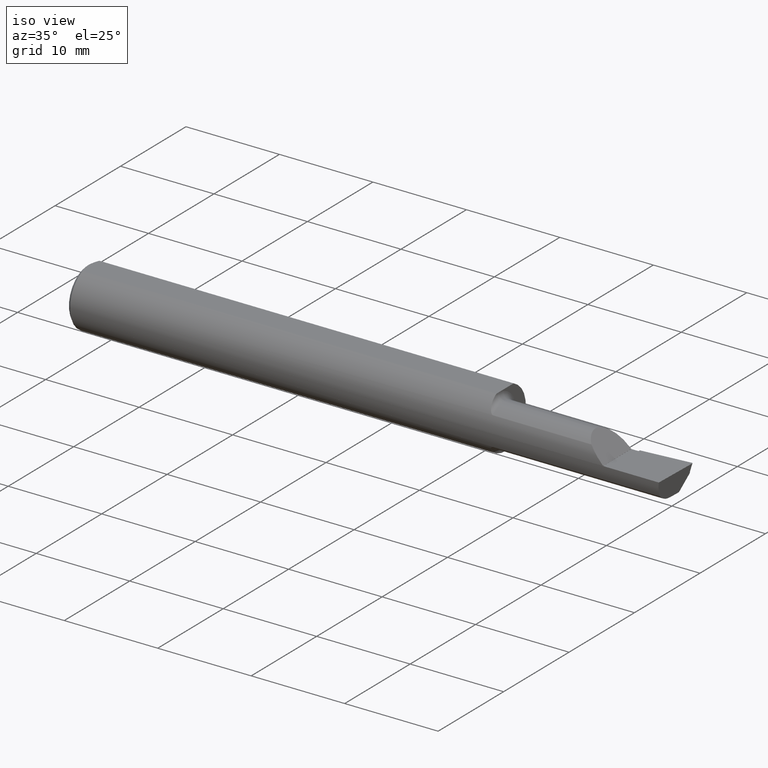
[diagram: clean part render]
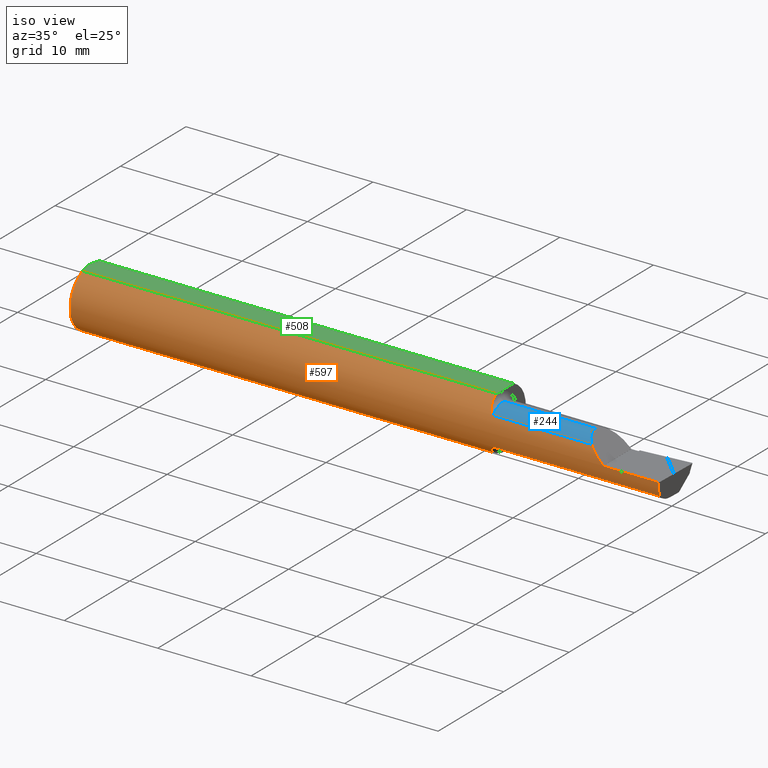
[diagram: same view with three faces highlighted in distinct colors, each labeled with its STEP entity id]
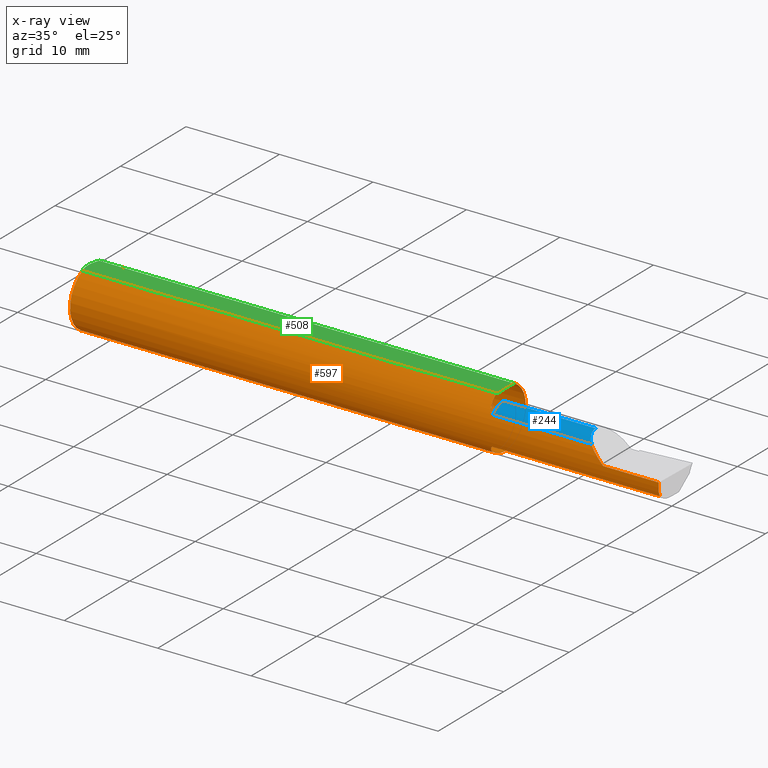
[diagram: x-ray of the same camera — body ghosted, the three highlighted faces saturated]
A machine part, iso view with three faces highlighted in distinct colors.
The next image is the same camera in x-ray (body ghosted, the three faces saturated) — at least one of them is partly hidden behind the body in this view.
Their STEP definitions:

[orange] entity #597 — the highlighted cylindrical surface (edge-blend (fillet) strip) has radius 3.1712 mm, axis along (-1, -0, -0).
#5 = EDGE_CURVE ( 'NONE', #467, #178, #11, .T. ) ;
#9 = CARTESIAN_POINT ( 'NONE',  ( 0.01499999999999915637, 0.000000000000000000, -0.1248500000000000026 ) ) ;
#11 = LINE ( 'NONE', #828, #252 ) ;
#16 = CARTESIAN_POINT ( 'NONE',  ( 1.784999999999999920, -0.1093425883694413014, 0.06026376082415467461 ) ) ;
#25 = ORIENTED_EDGE ( 'NONE', *, *, #273, .T. ) ;
#32 = CARTESIAN_POINT ( 'NONE',  ( 2.200086239175846003, -0.1093425883694415096, 0.06026376082415429991 ) ) ;
#46 = CARTESIAN_POINT ( 'NONE',  ( 1.761938239095210079, -0.07637198179816161170, -0.09902894417965883711 ) ) ;
#48 = CARTESIAN_POINT ( 'NONE',  ( 2.260000000000000231, -0.1248499999999999888, -3.414809992080329023E-17 ) ) ;
#51 = CARTESIAN_POINT ( 'NONE',  ( 2.024999999999999911, -0.1093425883694413014, 0.06026376082415467461 ) ) ;
#66 = CIRCLE ( 'NONE', #732, 0.1248500000000000026 ) ;
#81 = CARTESIAN_POINT ( 'NONE',  ( 2.238932527582365051, -0.1247904493837345280, 0.02141747241763532206 ) ) ;
#95 = LINE ( 'NONE', #1103, #230 ) ;
#97 = ORIENTED_EDGE ( 'NONE', *, *, #326, .T. ) ;
#108 = CARTESIAN_POINT ( 'NONE',  ( 2.500000000000000000, 0.000000000000000000, 0.000000000000000000 ) ) ;
#113 = CARTESIAN_POINT ( 'NONE',  ( 1.768415758364236590, -0.09681973434311108573, 0.07911054902715601578 ) ) ;
#119 = AXIS2_PLACEMENT_3D ( 'NONE', #889, #279, #682 ) ;
#122 = ORIENTED_EDGE ( 'NONE', *, *, #163, .T. ) ;
#125 = CARTESIAN_POINT ( 'NONE',  ( 2.500000000000000000, 0.05124158467494929065, 0.1138500000000000068 ) ) ;
#132 = CARTESIAN_POINT ( 'NONE',  ( 1.760000000000000009, 0.000000000000000000, 0.000000000000000000 ) ) ;
#134 = VERTEX_POINT ( 'NONE', #555 ) ;
#139 = CARTESIAN_POINT ( 'NONE',  ( 2.492174692773018396, -0.1248499999999999610, -0.02118798732072205496 ) ) ;
#145 = CARTESIAN_POINT ( 'NONE',  ( 2.489794518800235057, -0.1195698034294429557, -0.04170749830123408192 ) ) ;
#161 = VECTOR ( 'NONE', #1069, 39.37007874015748143 ) ;
#163 = EDGE_CURVE ( 'NONE', #178, #1138, #66, .T. ) ;
#165 = ORIENTED_EDGE ( 'NONE', *, *, #419, .T. ) ;
#172 =( BOUNDED_CURVE ( )  B_SPLINE_CURVE ( 3, ( #1200, #81, #592, #1311 ),
 .UNSPECIFIED., .F., .T. ) 
 B_SPLINE_CURVE_WITH_KNOTS ( ( 4, 4 ),
 ( 4.715192348093415475, 5.216111826723991207 ),
 .UNSPECIFIED. ) 
 CURVE ( )  GEOMETRIC_REPRESENTATION_ITEM ( )  RATIONAL_B_SPLINE_CURVE ( ( 1.000000000000000000, 0.9791990519953640559, 0.9791990519953640559, 1.000000000000000000 ) ) 
 REPRESENTATION_ITEM ( '' )  );
#174 = CARTESIAN_POINT ( 'NONE',  ( 1.766361277442388689, -0.09219001326833792254, -0.08449244930902043149 ) ) ;
#178 = VERTEX_POINT ( 'NONE', #352 ) ;
#186 = VERTEX_POINT ( 'NONE', #48 ) ;
#189 = CIRCLE ( 'NONE', #1062, 0.1248500000000000026 ) ;
#191 = CARTESIAN_POINT ( 'NONE',  ( 1.760000000000000009, -0.05124158467494927677, 0.1138500000000000068 ) ) ;
#193 = VERTEX_POINT ( 'NONE', #657 ) ;
#202 = DIRECTION ( 'NONE',  ( 0.000000000000000000, 0.000000000000000000, -1.000000000000000000 ) ) ;
#210 = CARTESIAN_POINT ( 'NONE',  ( 1.774262696791653271, -0.1045943557623048303, 0.06824036999240266910 ) ) ;
#216 = CARTESIAN_POINT ( 'NONE',  ( 1.766359086621634544, -0.09217855052086348921, 0.08450162317811930890 ) ) ;
#230 = VECTOR ( 'NONE', #777, 39.37007874015748143 ) ;
#236 = CARTESIAN_POINT ( 'NONE',  ( 2.487785916505024453, -0.1093425883694412876, -0.06026376082415470931 ) ) ;
#245 = ORIENTED_EDGE ( 'NONE', *, *, #5, .T. ) ;
#250 = DIRECTION ( 'NONE',  ( 0.000000000000000000, 0.000000000000000000, -1.000000000000000000 ) ) ;
#252 = VECTOR ( 'NONE', #302, 39.37007874015748143 ) ;
#267 = CARTESIAN_POINT ( 'NONE',  ( 1.760000000000000009, -0.05147485746864310929, -0.1137447209701746148 ) ) ;
#273 = EDGE_CURVE ( 'NONE', #636, #894, #584, .T. ) ;
#279 = DIRECTION ( 'NONE',  ( 1.000000000000000000, 0.000000000000000000, 0.000000000000000000 ) ) ;
#302 = DIRECTION ( 'NONE',  ( -1.000000000000000000, -0.000000000000000000, -0.000000000000000000 ) ) ;
#322 = VERTEX_POINT ( 'NONE', #1010 ) ;
#326 = EDGE_CURVE ( 'NONE', #894, #186, #95, .T. ) ;
#349 = CIRCLE ( 'NONE', #642, 0.1248500000000000026 ) ;
#352 = CARTESIAN_POINT ( 'NONE',  ( 0.01499999999999915637, -0.05124158467494929758, 0.1138500000000000068 ) ) ;
#374 = CARTESIAN_POINT ( 'NONE',  ( 1.781405924813791009, -0.1089009754209322584, -0.06106964548229007472 ) ) ;
#377 = ORIENTED_EDGE ( 'NONE', *, *, #672, .T. ) ;
#390 = CARTESIAN_POINT ( 'NONE',  ( 1.783134955130017518, -0.1093425883694447709, -0.06026376082415150354 ) ) ;
#400 = ORIENTED_EDGE ( 'NONE', *, *, #832, .T. ) ;
#404 = DIRECTION ( 'NONE',  ( 1.000000000000000000, -0.000000000000000000, -0.000000000000000000 ) ) ;
#409 = CARTESIAN_POINT ( 'NONE',  ( 2.487785916505024453, -0.1093425883694412876, -0.06026376082415470931 ) ) ;
#419 = EDGE_CURVE ( 'NONE', #322, #1283, #172, .T. ) ;
#430 = ORIENTED_EDGE ( 'NONE', *, *, #1101, .T. ) ;
#467 = VERTEX_POINT ( 'NONE', #191 ) ;
#491 = CARTESIAN_POINT ( 'NONE',  ( 1.777410591121773242, -0.1069877332768024020, 0.06436962514882092756 ) ) ;
#494 = VERTEX_POINT ( 'NONE', #1145 ) ;
#498 = CYLINDRICAL_SURFACE ( 'NONE', #996, 0.1248500000000000026 ) ;
#505 = DIRECTION ( 'NONE',  ( 0.000000000000000000, 0.000000000000000000, 1.000000000000000000 ) ) ;
#519 = CARTESIAN_POINT ( 'NONE',  ( 1.781414604163056081, -0.1089048667610733045, 0.06106289298433214413 ) ) ;
#525 = DIRECTION ( 'NONE',  ( 0.000000000000000000, 0.000000000000000000, -1.000000000000000000 ) ) ;
#542 = CARTESIAN_POINT ( 'NONE',  ( 1.760388743662554933, -0.06447589190997096709, -0.1071553580159688435 ) ) ;
#546 = EDGE_CURVE ( 'NONE', #1138, #1268, #189, .T. ) ;
#555 = CARTESIAN_POINT ( 'NONE',  ( 1.784999999999999920, -0.1093425883694413014, -0.06026376082415467461 ) ) ;
#559 = EDGE_CURVE ( 'NONE', #1013, #494, #1107, .T. ) ;
#575 = CARTESIAN_POINT ( 'NONE',  ( 1.768371954461044115, -0.09675137270842944226, -0.07920056856679652535 ) ) ;
#584 =( BOUNDED_CURVE ( )  B_SPLINE_CURVE ( 3, ( #236, #145, #139, #1272 ),
 .UNSPECIFIED., .F., .T. ) 
 B_SPLINE_CURVE_WITH_KNOTS ( ( 4, 4 ),
 ( 0.8554227114044697933, 1.359145557743775434 ),
 .UNSPECIFIED. ) 
 CURVE ( )  GEOMETRIC_REPRESENTATION_ITEM ( )  RATIONAL_B_SPLINE_CURVE ( ( 1.000000000000000000, 0.9789668132830409153, 0.9789668132830409153, 1.000000000000000000 ) ) 
 REPRESENTATION_ITEM ( '' )  );
#589 = ORIENTED_EDGE ( 'NONE', *, *, #714, .F. ) ;
#592 = CARTESIAN_POINT ( 'NONE',  ( 2.218537028253239729, -0.1195116721323034037, 0.04181297174676051193 ) ) ;
#597 = ADVANCED_FACE ( 'NONE', ( #599 ), #498, .T. ) ;
#599 = FACE_OUTER_BOUND ( 'NONE', #1035, .T. ) ;
#611 = DIRECTION ( 'NONE',  ( -1.000000000000000000, -0.000000000000000000, -0.000000000000000000 ) ) ;
#616 = EDGE_CURVE ( 'NONE', #636, #134, #1234, .T. ) ;
#636 = VERTEX_POINT ( 'NONE', #409 ) ;
#642 = AXIS2_PLACEMENT_3D ( 'NONE', #1220, #695, #912 ) ;
#644 = CARTESIAN_POINT ( 'NONE',  ( 0.01499999999999915637, 0.05124158467494929065, 0.1138500000000000068 ) ) ;
#645 = CARTESIAN_POINT ( 'NONE',  ( 1.760000000000000009, -0.05147485746864310929, -0.1137447209701746148 ) ) ;
#654 = ORIENTED_EDGE ( 'NONE', *, *, #559, .T. ) ;
#657 = CARTESIAN_POINT ( 'NONE',  ( 1.760000000000000009, 0.05124158467494929065, 0.1138500000000000068 ) ) ;
#672 = EDGE_CURVE ( 'NONE', #1268, #193, #757, .T. ) ;
#676 = CARTESIAN_POINT ( 'NONE',  ( 1.784999999999999920, -0.1093425883694413014, -0.06026376082415467461 ) ) ;
#682 = DIRECTION ( 'NONE',  ( 0.000000000000000000, 0.000000000000000000, -1.000000000000000000 ) ) ;
#686 = CIRCLE ( 'NONE', #119, 0.1248500000000000026 ) ;
#687 = ORIENTED_EDGE ( 'NONE', *, *, #616, .F. ) ;
#695 = DIRECTION ( 'NONE',  ( -1.000000000000000000, -0.000000000000000000, -0.000000000000000000 ) ) ;
#697 = CARTESIAN_POINT ( 'NONE',  ( 1.760000000000000009, -0.06483863215424721937, 0.1076969818635403198 ) ) ;
#714 = EDGE_CURVE ( 'NONE', #467, #494, #797, .T. ) ;
#732 = AXIS2_PLACEMENT_3D ( 'NONE', #1163, #951, #250 ) ;
#733 = DIRECTION ( 'NONE',  ( 1.000000000000000000, 0.000000000000000000, 0.000000000000000000 ) ) ;
#745 = DIRECTION ( 'NONE',  ( 1.000000000000000000, 0.000000000000000000, 0.000000000000000000 ) ) ;
#753 = VECTOR ( 'NONE', #611, 39.37007874015748143 ) ;
#757 = LINE ( 'NONE', #125, #161 ) ;
#769 = CARTESIAN_POINT ( 'NONE',  ( 2.494776250492609648, -0.1248499999999999888, -1.707404996040164512E-17 ) ) ;
#777 = DIRECTION ( 'NONE',  ( -1.000000000000000000, -0.000000000000000000, -0.000000000000000000 ) ) ;
#789 = CARTESIAN_POINT ( 'NONE',  ( 1.778582821436010875, -0.1077233320814302564, -0.06312374966870225312 ) ) ;
#797 = CIRCLE ( 'NONE', #975, 0.1248500000000000026 ) ;
#800 = CARTESIAN_POINT ( 'NONE',  ( 1.772661867212401932, -0.1027603103061494466, 0.07098658663575843630 ) ) ;
#809 = ORIENTED_EDGE ( 'NONE', *, *, #895, .F. ) ;
#820 = CARTESIAN_POINT ( 'NONE',  ( 1.778569800726603756, -0.1077176293511042937, 0.06313366163023678701 ) ) ;
#828 = CARTESIAN_POINT ( 'NONE',  ( 2.500000000000000000, -0.05124158467494929758, 0.1138500000000000068 ) ) ;
#832 = EDGE_CURVE ( 'NONE', #880, #134, #969, .T. ) ;
#852 = CARTESIAN_POINT ( 'NONE',  ( 1.763114859723588168, -0.08201250590250441785, -0.09440297353497605071 ) ) ;
#880 = VERTEX_POINT ( 'NONE', #267 ) ;
#889 = CARTESIAN_POINT ( 'NONE',  ( 1.760000000000000009, 0.000000000000000000, 0.000000000000000000 ) ) ;
#894 = VERTEX_POINT ( 'NONE', #769 ) ;
#895 = EDGE_CURVE ( 'NONE', #880, #193, #686, .T. ) ;
#897 = CARTESIAN_POINT ( 'NONE',  ( 1.772660015980654258, -0.1027612295985233376, -0.07098704890307022675 ) ) ;
#912 = DIRECTION ( 'NONE',  ( 0.000000000000000000, 0.000000000000000000, 1.000000000000000000 ) ) ;
#919 = CARTESIAN_POINT ( 'NONE',  ( 1.760000000000000009, -0.05147485746864310929, 0.1137447209701746148 ) ) ;
#951 = DIRECTION ( 'NONE',  ( 1.000000000000000000, -0.000000000000000000, -0.000000000000000000 ) ) ;
#969 = B_SPLINE_CURVE_WITH_KNOTS ( 'NONE', 3,
 ( #645, #1061, #542, #46, #852, #174, #575, #897, #1100, #990, #789, #374, #390, #676 ),
 .UNSPECIFIED., .F., .F.,
 ( 4, 2, 2, 2, 2, 2, 4 ),
 ( 0.000000000000000000, 0.0005517145261831978400, 0.001103429052366395680, 0.001655143578549593628, 0.001931000841641192060, 0.002068929473186997131, 0.002206858104732802636 ),
 .UNSPECIFIED. ) ;
#975 = AXIS2_PLACEMENT_3D ( 'NONE', #132, #733, #525 ) ;
#990 = CARTESIAN_POINT ( 'NONE',  ( 1.777410496273541307, -0.1069869057687729552, -0.06437073033037425673 ) ) ;
#996 = AXIS2_PLACEMENT_3D ( 'NONE', #108, #1031, #505 ) ;
#1006 = ORIENTED_EDGE ( 'NONE', *, *, #1166, .F. ) ;
#1008 = VECTOR ( 'NONE', #745, 39.37007874015748143 ) ;
#1010 = CARTESIAN_POINT ( 'NONE',  ( 2.260000000000000231, -0.1248495094103296843, 0.0003499999999999383053 ) ) ;
#1013 = VERTEX_POINT ( 'NONE', #1020 ) ;
#1020 = CARTESIAN_POINT ( 'NONE',  ( 1.784999999999999920, -0.1093425883694413014, 0.06026376082415467461 ) ) ;
#1031 = DIRECTION ( 'NONE',  ( -1.000000000000000000, -0.000000000000000000, -0.000000000000000000 ) ) ;
#1035 = EDGE_LOOP ( 'NONE', ( #687, #25, #97, #430, #165, #1006, #654, #589, #245, #122, #1122, #377, #809, #400 ) ) ;
#1037 = LINE ( 'NONE', #51, #1008 ) ;
#1040 = CARTESIAN_POINT ( 'NONE',  ( 1.783123630933980852, -0.1093425883694413153, 0.06026376082415468155 ) ) ;
#1061 = CARTESIAN_POINT ( 'NONE',  ( 1.760000000000000009, -0.05816623466208106080, -0.1107165568113169657 ) ) ;
#1062 = AXIS2_PLACEMENT_3D ( 'NONE', #1135, #404, #202 ) ;
#1069 = DIRECTION ( 'NONE',  ( 1.000000000000000000, 0.000000000000000000, 0.000000000000000000 ) ) ;
#1100 = CARTESIAN_POINT ( 'NONE',  ( 1.774283923201366742, -0.1046119976162258325, -0.06821230220210329487 ) ) ;
#1101 = EDGE_CURVE ( 'NONE', #186, #322, #349, .T. ) ;
#1103 = CARTESIAN_POINT ( 'NONE',  ( 2.500000000000000000, -0.1248500000000000165, -3.414809992080329023E-17 ) ) ;
#1107 = B_SPLINE_CURVE_WITH_KNOTS ( 'NONE', 3,
 ( #16, #1040, #519, #820, #491, #210, #800, #113, #216, #1222, #697, #919 ),
 .UNSPECIFIED., .F., .F.,
 ( 4, 2, 2, 2, 2, 4 ),
 ( 0.000000000000000000, 0.0001399554655829060069, 0.0002799109311658120138, 0.0005598218623316244614, 0.001119643724663256512, 0.002239287449326520397 ),
 .UNSPECIFIED. ) ;
#1122 = ORIENTED_EDGE ( 'NONE', *, *, #546, .T. ) ;
#1135 = CARTESIAN_POINT ( 'NONE',  ( 0.01499999999999915637, 0.000000000000000000, 0.000000000000000000 ) ) ;
#1138 = VERTEX_POINT ( 'NONE', #9 ) ;
#1145 = CARTESIAN_POINT ( 'NONE',  ( 1.760000000000000009, -0.05147485746864310929, 0.1137447209701746148 ) ) ;
#1163 = CARTESIAN_POINT ( 'NONE',  ( 0.01499999999999915637, 0.000000000000000000, 0.000000000000000000 ) ) ;
#1166 = EDGE_CURVE ( 'NONE', #1013, #1283, #1037, .T. ) ;
#1200 = CARTESIAN_POINT ( 'NONE',  ( 2.260000000000000231, -0.1248495094103296843, 0.0003499999999999383053 ) ) ;
#1220 = CARTESIAN_POINT ( 'NONE',  ( 2.260000000000000231, 0.000000000000000000, 0.000000000000000000 ) ) ;
#1222 = CARTESIAN_POINT ( 'NONE',  ( 1.761513270166815026, -0.07700069323836869484, 0.09928727876353371506 ) ) ;
#1229 = CARTESIAN_POINT ( 'NONE',  ( 2.024999999999999911, -0.1093425883694413014, -0.06026376082415467461 ) ) ;
#1234 = LINE ( 'NONE', #1229, #753 ) ;
#1268 = VERTEX_POINT ( 'NONE', #644 ) ;
#1272 = CARTESIAN_POINT ( 'NONE',  ( 2.494776250492609648, -0.1248499999999999888, -1.707404996040164512E-17 ) ) ;
#1283 = VERTEX_POINT ( 'NONE', #32 ) ;
#1311 = CARTESIAN_POINT ( 'NONE',  ( 2.200086239175846003, -0.1093425883694415096, 0.06026376082415429991 ) ) ;

[blue] entity #244 — the highlighted cylindrical surface (edge-blend (fillet) strip) has radius 2.2606 mm, axis along (-1, -0, -0).
#14 = CARTESIAN_POINT ( 'NONE',  ( 2.171350000000000335, -0.06910891545235446631, 0.08900000000000002354 ) ) ;
#29 = ORIENTED_EDGE ( 'NONE', *, *, #1162, .T. ) ;
#32 = CARTESIAN_POINT ( 'NONE',  ( 2.200086239175846003, -0.1093425883694415096, 0.06026376082415429991 ) ) ;
#51 = CARTESIAN_POINT ( 'NONE',  ( 2.024999999999999911, -0.1093425883694413014, 0.06026376082415467461 ) ) ;
#71 = EDGE_CURVE ( 'NONE', #393, #674, #501, .T. ) ;
#94 = CARTESIAN_POINT ( 'NONE',  ( 2.200086239175846003, -0.1093425883694415096, 0.06026376082415429991 ) ) ;
#117 = CARTESIAN_POINT ( 'NONE',  ( 2.171350000000000335, -0.04385000000000000009, 0.08899999999999999578 ) ) ;
#131 = DIRECTION ( 'NONE',  ( 1.000000000000000000, 0.000000000000000000, 0.000000000000000000 ) ) ;
#152 = DIRECTION ( 'NONE',  ( 0.000000000000000000, 0.000000000000000000, 1.000000000000000000 ) ) ;
#183 = CARTESIAN_POINT ( 'NONE',  ( 1.784999999999999920, -0.04841410157637246470, 0.08888289473684209130 ) ) ;
#244 = ADVANCED_FACE ( 'NONE', ( #1260 ), #346, .T. ) ;
#248 = DIRECTION ( 'NONE',  ( 0.000000000000000000, 0.000000000000000000, -1.000000000000000000 ) ) ;
#262 = CARTESIAN_POINT ( 'NONE',  ( 1.784999549995949897, -0.04385000000000000009, 0.08899999999999999578 ) ) ;
#264 = ORIENTED_EDGE ( 'NONE', *, *, #1166, .T. ) ;
#317 = CARTESIAN_POINT ( 'NONE',  ( 2.181498916115400810, -0.09223924859979849844, 0.07885108388459914630 ) ) ;
#335 = CIRCLE ( 'NONE', #1084, 0.08899999999999999578 ) ;
#346 = CYLINDRICAL_SURFACE ( 'NONE', #803, 0.08899999999999999578 ) ;
#355 = VERTEX_POINT ( 'NONE', #465 ) ;
#364 = CARTESIAN_POINT ( 'NONE',  ( 1.784999549995949897, -0.04537136719212415265, 0.08899999999999999578 ) ) ;
#369 = CARTESIAN_POINT ( 'NONE',  ( 2.171350000000000335, -0.04385000000000000009, 0.08899999999999999578 ) ) ;
#371 = EDGE_CURVE ( 'NONE', #674, #355, #942, .T. ) ;
#391 = CARTESIAN_POINT ( 'NONE',  ( 1.784999999999999920, -0.04689273438424830520, 0.08896101634190878293 ) ) ;
#393 = VERTEX_POINT ( 'NONE', #369 ) ;
#405 = DIRECTION ( 'NONE',  ( -1.000000000000000000, -0.000000000000000000, -0.000000000000000000 ) ) ;
#434 = DIRECTION ( 'NONE',  ( -1.000000000000000000, -0.000000000000000000, -0.000000000000000000 ) ) ;
#465 = CARTESIAN_POINT ( 'NONE',  ( 1.784999999999999920, -0.04841410157637246470, 0.08888289473684209130 ) ) ;
#501 = LINE ( 'NONE', #1235, #523 ) ;
#523 = VECTOR ( 'NONE', #405, 39.37007874015748143 ) ;
#595 = ORIENTED_EDGE ( 'NONE', *, *, #371, .T. ) ;
#660 = ORIENTED_EDGE ( 'NONE', *, *, #987, .F. ) ;
#674 = VERTEX_POINT ( 'NONE', #1250 ) ;
#745 = DIRECTION ( 'NONE',  ( 1.000000000000000000, 0.000000000000000000, 0.000000000000000000 ) ) ;
#803 = AXIS2_PLACEMENT_3D ( 'NONE', #863, #434, #152 ) ;
#863 = CARTESIAN_POINT ( 'NONE',  ( 1.760000000000000009, -0.04385000000000000009, 0.000000000000000000 ) ) ;
#942 = B_SPLINE_CURVE_WITH_KNOTS ( 'NONE', 3,
 ( #262, #364, #391, #183 ),
 .UNSPECIFIED., .F., .F.,
 ( 4, 4 ),
 ( 0.0001159281800398605754, 0.0002318563600797211507 ),
 .UNSPECIFIED. ) ;
#987 = EDGE_CURVE ( 'NONE', #393, #1283, #1318, .T. ) ;
#1008 = VECTOR ( 'NONE', #745, 39.37007874015748143 ) ;
#1013 = VERTEX_POINT ( 'NONE', #1020 ) ;
#1020 = CARTESIAN_POINT ( 'NONE',  ( 1.784999999999999920, -0.1093425883694413014, 0.06026376082415467461 ) ) ;
#1037 = LINE ( 'NONE', #51, #1008 ) ;
#1059 = ORIENTED_EDGE ( 'NONE', *, *, #71, .T. ) ;
#1084 = AXIS2_PLACEMENT_3D ( 'NONE', #1269, #131, #248 ) ;
#1115 = EDGE_LOOP ( 'NONE', ( #660, #1059, #595, #29, #264 ) ) ;
#1162 = EDGE_CURVE ( 'NONE', #355, #1013, #335, .T. ) ;
#1166 = EDGE_CURVE ( 'NONE', #1013, #1283, #1037, .T. ) ;
#1235 = CARTESIAN_POINT ( 'NONE',  ( 1.760000000000000009, -0.04385000000000000009, 0.08899999999999999578 ) ) ;
#1250 = CARTESIAN_POINT ( 'NONE',  ( 1.784999549995949897, -0.04385000000000000009, 0.08899999999999999578 ) ) ;
#1260 = FACE_OUTER_BOUND ( 'NONE', #1115, .T. ) ;
#1269 = CARTESIAN_POINT ( 'NONE',  ( 1.784999999999999920, -0.04385000000000000009, 0.000000000000000000 ) ) ;
#1283 = VERTEX_POINT ( 'NONE', #32 ) ;
#1318 =( BOUNDED_CURVE ( )  B_SPLINE_CURVE ( 3, ( #117, #14, #317, #94 ),
 .UNSPECIFIED., .F., .T. ) 
 B_SPLINE_CURVE_WITH_KNOTS ( ( 4, 4 ),
 ( 0.000000000000000000, 0.8269532615970635048 ),
 .UNSPECIFIED. ) 
 CURVE ( )  GEOMETRIC_REPRESENTATION_ITEM ( )  RATIONAL_B_SPLINE_CURVE ( ( 1.000000000000000000, 0.9438196436970130998, 0.9438196436970130998, 1.000000000000000000 ) ) 
 REPRESENTATION_ITEM ( '' )  );

[green] entity #508 — the highlighted planar face has unit normal (0, 0, -1).
#4 = CARTESIAN_POINT ( 'NONE',  ( 0.008866562462786909196, 0.03466860267591459488, 0.1138500000000000206 ) ) ;
#5 = EDGE_CURVE ( 'NONE', #467, #178, #11, .T. ) ;
#11 = LINE ( 'NONE', #828, #252 ) ;
#21 = DIRECTION ( 'NONE',  ( 0.000000000000000000, -1.000000000000000000, 0.000000000000000000 ) ) ;
#26 = EDGE_LOOP ( 'NONE', ( #711, #148, #665, #1125, #792, #493, #630 ) ) ;
#33 = LINE ( 'NONE', #432, #500 ) ;
#58 = EDGE_CURVE ( 'NONE', #1268, #213, #1038, .T. ) ;
#86 = AXIS2_PLACEMENT_3D ( 'NONE', #904, #101, #1021 ) ;
#101 = DIRECTION ( 'NONE',  ( -0.000000000000000000, 0.000000000000000000, -1.000000000000000000 ) ) ;
#115 = CARTESIAN_POINT ( 'NONE',  ( 0.003999999999999200376, 0.008800694614867361418, 0.1138500000000000068 ) ) ;
#124 = CARTESIAN_POINT ( 'NONE',  ( 0.01167347033176661768, -0.04313650299737421812, 0.1138500000000000068 ) ) ;
#125 = CARTESIAN_POINT ( 'NONE',  ( 2.500000000000000000, 0.05124158467494929065, 0.1138500000000000068 ) ) ;
#127 = CARTESIAN_POINT ( 'NONE',  ( 0.01499999999999915637, 0.05124158467494929065, 0.1138500000000000068 ) ) ;
#148 = ORIENTED_EDGE ( 'NONE', *, *, #672, .F. ) ;
#150 = CARTESIAN_POINT ( 'NONE',  ( 1.760000000000000009, 0.1000000000000000056, 0.1138500000000000068 ) ) ;
#156 = CARTESIAN_POINT ( 'NONE',  ( 0.003999999999982063043, -1.276290005483319770E-15, 0.1138500000000000068 ) ) ;
#161 = VECTOR ( 'NONE', #1069, 39.37007874015748143 ) ;
#178 = VERTEX_POINT ( 'NONE', #352 ) ;
#191 = CARTESIAN_POINT ( 'NONE',  ( 1.760000000000000009, -0.05124158467494927677, 0.1138500000000000068 ) ) ;
#193 = VERTEX_POINT ( 'NONE', #657 ) ;
#201 = LINE ( 'NONE', #516, #862 ) ;
#213 = VERTEX_POINT ( 'NONE', #156 ) ;
#252 = VECTOR ( 'NONE', #302, 39.37007874015748143 ) ;
#302 = DIRECTION ( 'NONE',  ( -1.000000000000000000, -0.000000000000000000, -0.000000000000000000 ) ) ;
#324 = CARTESIAN_POINT ( 'NONE',  ( 0.003999999999999693905, -0.008848600531297691474, 0.1138500000000000068 ) ) ;
#350 = CARTESIAN_POINT ( 'NONE',  ( 0.005080301127455553664, -0.01778481300359937775, 0.1138500000000000206 ) ) ;
#352 = CARTESIAN_POINT ( 'NONE',  ( 0.01499999999999915637, -0.05124158467494929758, 0.1138500000000000068 ) ) ;
#410 = CARTESIAN_POINT ( 'NONE',  ( 0.01167190377471788269, 0.04313268608482605931, 0.1138500000000000068 ) ) ;
#432 = CARTESIAN_POINT ( 'NONE',  ( 1.760000000000000009, 0.1000000000000000056, 0.1138500000000000068 ) ) ;
#453 = LINE ( 'NONE', #150, #1218 ) ;
#467 = VERTEX_POINT ( 'NONE', #191 ) ;
#493 = ORIENTED_EDGE ( 'NONE', *, *, #994, .F. ) ;
#500 = VECTOR ( 'NONE', #1176, 39.37007874015748143 ) ;
#508 = ADVANCED_FACE ( 'NONE', ( #605 ), #826, .F. ) ;
#516 = CARTESIAN_POINT ( 'NONE',  ( 1.760000000000000009, 0.1000000000000000056, 0.1138500000000000068 ) ) ;
#549 = DIRECTION ( 'NONE',  ( 0.000000000000000000, -1.000000000000000000, 0.000000000000000000 ) ) ;
#605 = FACE_OUTER_BOUND ( 'NONE', #26, .T. ) ;
#630 = ORIENTED_EDGE ( 'NONE', *, *, #739, .F. ) ;
#644 = CARTESIAN_POINT ( 'NONE',  ( 0.01499999999999915637, 0.05124158467494929065, 0.1138500000000000068 ) ) ;
#657 = CARTESIAN_POINT ( 'NONE',  ( 1.760000000000000009, 0.05124158467494929065, 0.1138500000000000068 ) ) ;
#665 = ORIENTED_EDGE ( 'NONE', *, *, #58, .T. ) ;
#672 = EDGE_CURVE ( 'NONE', #1268, #193, #757, .T. ) ;
#709 = EDGE_CURVE ( 'NONE', #193, #1172, #453, .T. ) ;
#711 = ORIENTED_EDGE ( 'NONE', *, *, #709, .F. ) ;
#720 = CARTESIAN_POINT ( 'NONE',  ( 0.008925039223039428135, -0.03485448893270377130, 0.1138499999999999790 ) ) ;
#739 = EDGE_CURVE ( 'NONE', #1172, #1165, #33, .T. ) ;
#757 = LINE ( 'NONE', #125, #161 ) ;
#792 = ORIENTED_EDGE ( 'NONE', *, *, #5, .F. ) ;
#822 = CARTESIAN_POINT ( 'NONE',  ( 0.003999999999982063043, -1.276290005483319770E-15, 0.1138500000000000068 ) ) ;
#826 = PLANE ( 'NONE',  #86 ) ;
#827 = B_SPLINE_CURVE_WITH_KNOTS ( 'NONE', 3,
 ( #859, #324, #350, #720, #124, #1143 ),
 .UNSPECIFIED., .F., .F.,
 ( 4, 2, 4 ),
 ( 0.002543458196361383060, 0.003213918189955208317, 0.003884378183549033140 ),
 .UNSPECIFIED. ) ;
#828 = CARTESIAN_POINT ( 'NONE',  ( 2.500000000000000000, -0.05124158467494929758, 0.1138500000000000068 ) ) ;
#851 = CARTESIAN_POINT ( 'NONE',  ( 1.760000000000000009, -0.04969615258097146576, 0.1138500000000000068 ) ) ;
#859 = CARTESIAN_POINT ( 'NONE',  ( 0.003999999999982063043, -1.276290005483319770E-15, 0.1138500000000000068 ) ) ;
#862 = VECTOR ( 'NONE', #21, 39.37007874015748143 ) ;
#904 = CARTESIAN_POINT ( 'NONE',  ( 0.000000000000000000, 0.1000000000000000056, 0.1138500000000000068 ) ) ;
#994 = EDGE_CURVE ( 'NONE', #1165, #467, #201, .T. ) ;
#1021 = DIRECTION ( 'NONE',  ( -1.000000000000000000, 0.000000000000000000, 0.000000000000000000 ) ) ;
#1038 = B_SPLINE_CURVE_WITH_KNOTS ( 'NONE', 3,
 ( #127, #410, #4, #1121, #115, #822 ),
 .UNSPECIFIED., .F., .F.,
 ( 4, 2, 4 ),
 ( 0.001209797888329806285, 0.001876628042345594672, 0.002543458196361383060 ),
 .UNSPECIFIED. ) ;
#1069 = DIRECTION ( 'NONE',  ( 1.000000000000000000, 0.000000000000000000, 0.000000000000000000 ) ) ;
#1121 = CARTESIAN_POINT ( 'NONE',  ( 0.005030588787081021786, 0.01748826716933454817, 0.1138499999999999790 ) ) ;
#1125 = ORIENTED_EDGE ( 'NONE', *, *, #1232, .T. ) ;
#1143 = CARTESIAN_POINT ( 'NONE',  ( 0.01499999999999915637, -0.05124158467494929758, 0.1138500000000000068 ) ) ;
#1165 = VERTEX_POINT ( 'NONE', #851 ) ;
#1172 = VERTEX_POINT ( 'NONE', #1174 ) ;
#1174 = CARTESIAN_POINT ( 'NONE',  ( 1.760000000000000009, -0.03800384741902852748, 0.1138500000000000068 ) ) ;
#1176 = DIRECTION ( 'NONE',  ( 0.000000000000000000, -1.000000000000000000, 0.000000000000000000 ) ) ;
#1218 = VECTOR ( 'NONE', #549, 39.37007874015748143 ) ;
#1232 = EDGE_CURVE ( 'NONE', #213, #178, #827, .T. ) ;
#1268 = VERTEX_POINT ( 'NONE', #644 ) ;